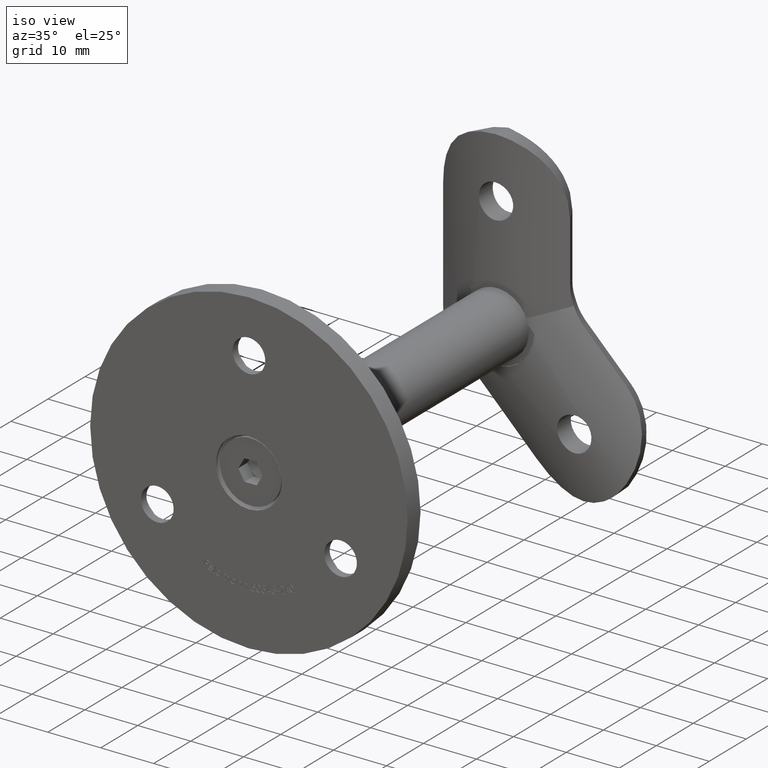
[diagram: clean part render]
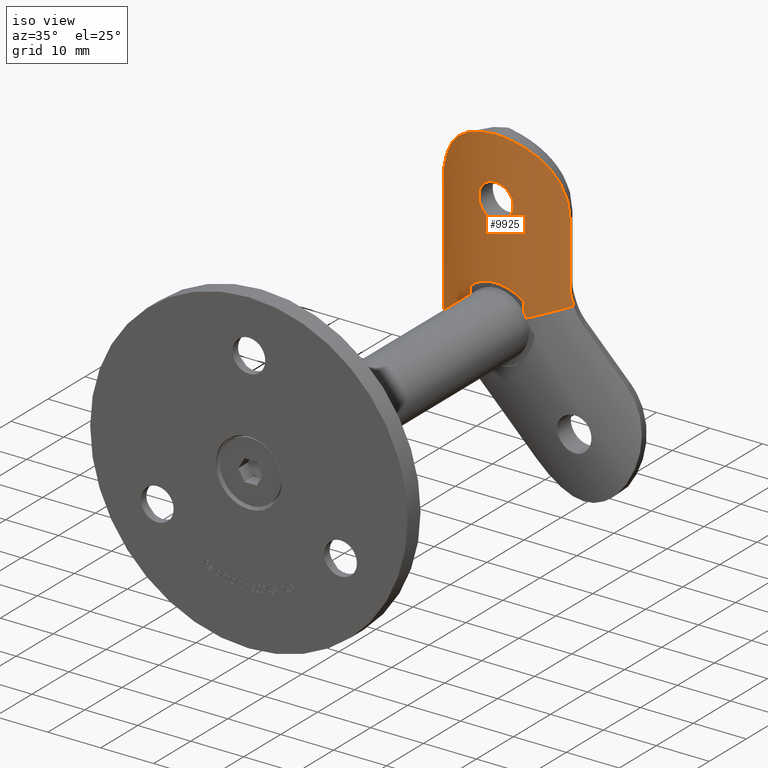
[diagram: same view with one face highlighted and labeled with its STEP entity id]
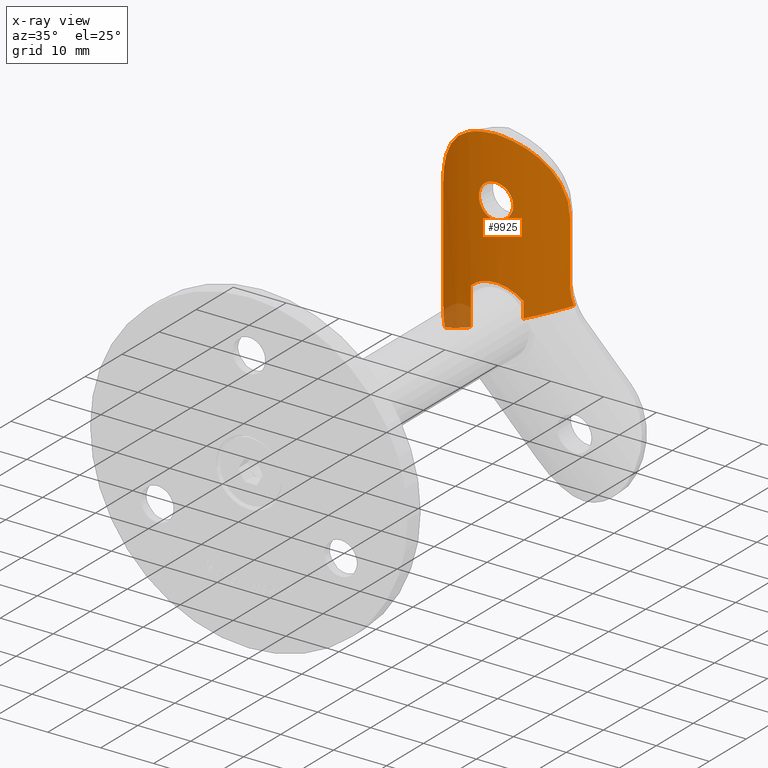
[diagram: x-ray of the same camera — body ghosted, the highlighted face saturated]
A machine part, iso view. The second image highlights one B-rep face of the part: STEP entity #9925.
The next image is the same camera in x-ray: the body ghosted, the highlighted face saturated — about 3% of this face is hidden behind the body in this view.
In plain terms, the highlighted cylindrical surface (partial cylindrical patch) has radius 24.9 mm, axis along (0, 0, 1).
Its self-contained STEP definition (entity closure, byte-faithful):
#91 = CARTESIAN_POINT ( 'NONE',  ( 1.827830933494218213, 0.06309544638728339927, -25.62401842934105645 ) ) ;
#364 = CARTESIAN_POINT ( 'NONE',  ( 12.50401797558645889, 3.367245079502465099, -27.32066617035510347 ) ) ;
#681 = CARTESIAN_POINT ( 'NONE',  ( -11.48949436263638724, 2.809243578117404105, -37.25910438981322415 ) ) ;
#724 = CARTESIAN_POINT ( 'NONE',  ( 12.21175480284177084, 3.199945751853462195, -26.20479511440437292 ) ) ;
#736 = CARTESIAN_POINT ( 'NONE',  ( -3.082716016114394275, 0.1914255402583636134, -10.44892698582973267 ) ) ;
#775 = ORIENTED_EDGE ( 'NONE', *, *, #7744, .F. ) ;
#820 = LINE ( 'NONE', #11184, #8758 ) ;
#862 = DIRECTION ( 'NONE',  ( 1.000000000000000000, 0.000000000000000000, 0.000000000000000000 ) ) ;
#911 = CARTESIAN_POINT ( 'NONE',  ( -0.4220450892774200713, 0.002691629868290161195, -8.270423108294716386 ) ) ;
#967 = CARTESIAN_POINT ( 'NONE',  ( 2.584891277162055356, 0.1342510905390189024, -9.518683599167735210 ) ) ;
#1010 = CARTESIAN_POINT ( 'NONE',  ( -11.63127593423871176, 2.883240075711221539, -9.264296820675539834 ) ) ;
#1401 =( BOUNDED_CURVE ( )  B_SPLINE_CURVE ( 3, ( #3102, #9578, #6937, #364 ),
 .UNSPECIFIED., .F., .F. ) 
 B_SPLINE_CURVE_WITH_KNOTS ( ( 4, 4 ),
 ( 4.913127052001620143, 5.238494576118018387 ),
 .UNSPECIFIED. ) 
 CURVE ( )  GEOMETRIC_REPRESENTATION_ITEM ( )  RATIONAL_B_SPLINE_CURVE ( ( 1.000000000000000000, 0.9911974376278638310, 0.9911974376278638310, 1.000000000000000000 ) ) 
 REPRESENTATION_ITEM ( '' )  );
#1424 = CARTESIAN_POINT ( 'NONE',  ( -3.704398101367949447, 0.2763284573897663021, -26.43863449741702709 ) ) ;
#1484 = CARTESIAN_POINT ( 'NONE',  ( -1.816407414500745832, 0.06535917475731205240, -25.63243878407243415 ) ) ;
#1538 = CARTESIAN_POINT ( 'NONE',  ( -1.590617300758585317, 0.04982189489905323315, -25.57662202755393466 ) ) ;
#1724 =( BOUNDED_CURVE ( )  B_SPLINE_CURVE ( 3, ( #10206, #11626, #10271, #3599 ),
 .UNSPECIFIED., .F., .F. ) 
 B_SPLINE_CURVE_WITH_KNOTS ( ( 4, 4 ),
 ( 4.232787700179390100, 4.511650908767759205 ),
 .UNSPECIFIED. ) 
 CURVE ( )  GEOMETRIC_REPRESENTATION_ITEM ( )  RATIONAL_B_SPLINE_CURVE ( ( 1.000000000000000000, 0.9935301013060989783, 0.9935301013060989783, 1.000000000000000000 ) ) 
 REPRESENTATION_ITEM ( '' )  );
#1820 = VERTEX_POINT ( 'NONE', #9528 ) ;
#1892 = CARTESIAN_POINT ( 'NONE',  ( 12.00000000000000000, 3.082346597307952685, -11.67467251880739632 ) ) ;
#2022 = B_SPLINE_CURVE_WITH_KNOTS ( 'NONE', 3,
 ( #6488, #5180, #11774, #13287, #6538, #15941, #9195, #7892, #17095, #9252, #10591, #15880, #13058, #4942, #17217, #14432, #13113, #6306, #15699, #7656, #3755, #1010, #2349, #3691, #6366, #7719 ),
 .UNSPECIFIED., .F., .F.,
 ( 4, 2, 2, 2, 2, 2, 2, 2, 2, 2, 2, 2, 4 ),
 ( 0.0005688773810512037961, 0.003010928116034047343, 0.004231953483525469767, 0.005452978851016893058, 0.007895029585999739641, 0.009116054953491162932, 0.01033708032098258796, 0.01155810568847401645, 0.01277913105596544495, 0.01522118179094829847, 0.01644220715843973044, 0.01766323252593116067, 0.02010528326091401766 ),
 .UNSPECIFIED. ) ;
#2125 = CARTESIAN_POINT ( 'NONE',  ( 0.8203206258465063350, 5.729330855228086705E-15, -0.03877798918743958351 ) ) ;
#2136 = CARTESIAN_POINT ( 'NONE',  ( 3.145969067140687248, 0.1995014300288233955, -10.65704632552842313 ) ) ;
#2171 = CARTESIAN_POINT ( 'NONE',  ( -12.00000000000000000, 3.082346597307952685, -34.42717768169227810 ) ) ;
#2176 = CARTESIAN_POINT ( 'NONE',  ( 11.99999999999999645, 3.082346597307953129, -24.48648722328091409 ) ) ;
#2188 = CARTESIAN_POINT ( 'NONE',  ( 2.582517882733477599, 0.1339974607114499672, -13.48462843409184408 ) ) ;
#2243 = CARTESIAN_POINT ( 'NONE',  ( -2.032879073410320814E-16, 4.352808201167243029E-19, -14.74999999999999645 ) ) ;
#2349 = CARTESIAN_POINT ( 'NONE',  ( -11.71892018293221938, 2.929946608142864672, -9.661418181616120648 ) ) ;
#2510 = VERTEX_POINT ( 'NONE', #681 ) ;
#2544 = CARTESIAN_POINT ( 'NONE',  ( -0.8475389795980344809, 0.01354129543384612402, -14.64484711525225968 ) ) ;
#2906 = VECTOR ( 'NONE', #9082, 1000.000000000000000 ) ;
#2959 = CARTESIAN_POINT ( 'NONE',  ( -2.256384447253275027, 0.1014627439347212806, -25.76416581438056497 ) ) ;
#3062 = CARTESIAN_POINT ( 'NONE',  ( 6.193579615948622497, 0.7798677464109063928, -1.697978878828575677 ) ) ;
#3102 = CARTESIAN_POINT ( 'NONE',  ( 4.964876634922554821, 0.5000000000000004441, -30.44348076230577504 ) ) ;
#3222 = ORIENTED_EDGE ( 'NONE', *, *, #11082, .F. ) ;
#3226 = VERTEX_POINT ( 'NONE', #5668 ) ;
#3236 = CARTESIAN_POINT ( 'NONE',  ( 9.198392393617037754, 1.759813120020573329, -4.259165633863893241 ) ) ;
#3411 = CARTESIAN_POINT ( 'NONE',  ( 2.832238759154640295, 0.1583304047991462016, -0.3739006947137712977 ) ) ;
#3424 = CARTESIAN_POINT ( 'NONE',  ( -3.228490066456462415, 0.2101517877956182168, -11.07077292914577704 ) ) ;
#3510 = DIRECTION ( 'NONE',  ( -0.000000000000000000, -0.000000000000000000, 1.000000000000000000 ) ) ;
#3531 = CARTESIAN_POINT ( 'NONE',  ( 2.920930841320863891, 0.1717806159786301745, -12.94064173437226373 ) ) ;
#3591 = CARTESIAN_POINT ( 'NONE',  ( -1.438107512745444794, 0.04079224225900569822, -8.577814977783782879 ) ) ;
#3599 = CARTESIAN_POINT ( 'NONE',  ( -4.964876634922568144, 0.5000000000000004441, -34.55651923769422496 ) ) ;
#3627 = CARTESIAN_POINT ( 'NONE',  ( -12.00000000000000000, 3.082346597307952685, -33.84117803419981385 ) ) ;
#3645 = CARTESIAN_POINT ( 'NONE',  ( 1.441942000660585643, 0.04100555873260482848, -14.42038812942246295 ) ) ;
#3691 = CARTESIAN_POINT ( 'NONE',  ( -11.92926174041580012, 3.043008909993824229, -10.86203283303862932 ) ) ;
#3755 = CARTESIAN_POINT ( 'NONE',  ( -11.41929183893146593, 2.772549371437245558, -8.476390597548276062 ) ) ;
#3771 = CARTESIAN_POINT ( 'NONE',  ( -2.586429615238502677, 0.1344104879972014277, -13.47939005895978859 ) ) ;
#4061 = B_SPLINE_CURVE_WITH_KNOTS ( 'NONE', 3,
 ( #5422, #6783, #14911, #16131, #6729, #8093, #13720, #13475, #91, #13663, #4067, #4119, #14855, #1538, #1484, #2959, #12349, #8155, #4293, #10784, #1424, #16183, #5367, #15019 ),
 .UNSPECIFIED., .F., .F.,
 ( 4, 2, 2, 2, 2, 2, 2, 2, 2, 2, 2, 4 ),
 ( 0.000000000000000000, 0.001374055046406987522, 0.002061082569610481283, 0.002748110092813975044, 0.004122165139220966903, 0.005496220185627959630, 0.006870275232034951489, 0.007557302755238449153, 0.008244330278441945950, 0.008931357801645445349, 0.009618385324848941278, 0.01099244037125593661 ),
 .UNSPECIFIED. ) ;
#4067 = CARTESIAN_POINT ( 'NONE',  ( 0.4623322430174249265, 6.315633565611699913E-05, -25.40022149196120438 ) ) ;
#4119 = CARTESIAN_POINT ( 'NONE',  ( -0.4555041638600173526, -6.268823660555099524E-05, -25.39978014968202658 ) ) ;
#4159 = CARTESIAN_POINT ( 'NONE',  ( 4.964876634922554821, 0.5000000000000004441, -27.42456898382018693 ) ) ;
#4293 = CARTESIAN_POINT ( 'NONE',  ( -3.100854879138974063, 0.1929892019412313697, -26.10883726280268746 ) ) ;
#4408 = CARTESIAN_POINT ( 'NONE',  ( 5.128062691157524000, 0.5308536768871348066, -1.148819043821191821 ) ) ;
#4512 = CARTESIAN_POINT ( 'NONE',  ( 12.00000000000000000, 3.082346597307952685, -12.49999999999999645 ) ) ;
#4580 = CARTESIAN_POINT ( 'NONE',  ( -4.964876634922568144, 0.5000000000000004441, -34.55651923769422496 ) ) ;
#4626 = CARTESIAN_POINT ( 'NONE',  ( 11.71973281888406504, 2.930381199801667780, -9.665526875418015251 ) ) ;
#4840 = CARTESIAN_POINT ( 'NONE',  ( 4.964876634922554821, 0.5000000000000004441, -30.44348076230577504 ) ) ;
#4848 = CARTESIAN_POINT ( 'NONE',  ( 3.229181485055398593, 0.2102417534989784731, -11.92503267213603380 ) ) ;
#4933 = CARTESIAN_POINT ( 'NONE',  ( 4.964876634922554821, 0.5000000000000004441, -57.31928916848294620 ) ) ;
#4942 = CARTESIAN_POINT ( 'NONE',  ( -8.936431653063731773, 1.657067174833706469, -3.951359026442096578 ) ) ;
#4960 = CARTESIAN_POINT ( 'NONE',  ( 0.8419475301357748354, 0.01337008707016773545, -14.64619291664299183 ) ) ;
#5014 = CARTESIAN_POINT ( 'NONE',  ( -3.229275808357102928, 0.2102551596989838401, -11.92331311017007778 ) ) ;
#5023 = AXIS2_PLACEMENT_3D ( 'NONE', #12902, #14347, #862 ) ;
#5180 = CARTESIAN_POINT ( 'NONE',  ( -0.8191954138921666573, 1.482731174168652349E-15, -0.03873852067721934161 ) ) ;
#5245 = CARTESIAN_POINT ( 'NONE',  ( -2.150297687164746119, 0.09256582363791968082, -13.94612874792547785 ) ) ;
#5367 = CARTESIAN_POINT ( 'NONE',  ( -4.636296391438945008, 0.4331409682963525132, -27.10314596213624938 ) ) ;
#5422 = CARTESIAN_POINT ( 'NONE',  ( 4.964876634922554821, 0.5000000000000004441, -27.42456898382018693 ) ) ;
#5454 = ORIENTED_EDGE ( 'NONE', *, *, #14934, .F. ) ;
#5579 = LINE ( 'NONE', #10489, #2906 ) ;
#5668 = CARTESIAN_POINT ( 'NONE',  ( 1.463318081287534743E-14, 0.000000000000000000, -0.01000400320320254943 ) ) ;
#5723 = CARTESIAN_POINT ( 'NONE',  ( 4.008134617361835517, 0.3215756636084152187, -0.7086648193223168413 ) ) ;
#5888 = CARTESIAN_POINT ( 'NONE',  ( 8.941611915199445093, 1.659061782107881244, -3.957235292452659259 ) ) ;
#5929 = VERTEX_POINT ( 'NONE', #7739 ) ;
#6073 = CARTESIAN_POINT ( 'NONE',  ( -2.145978315695688643, 0.09218970704659187887, -9.050070338001447112 ) ) ;
#6131 = CARTESIAN_POINT ( 'NONE',  ( 1.048473687167943424, 0.02130420838847979156, -14.58359635605199145 ) ) ;
#6140 = B_SPLINE_CURVE_WITH_KNOTS ( 'NONE', 3,
 ( #7301, #15133, #724, #16925, #2176, #16814 ),
 .UNSPECIFIED., .F., .F.,
 ( 4, 2, 4 ),
 ( 7.165583942981723818E-18, 0.001734632446073682390, 0.003469264892147357841 ),
 .UNSPECIFIED. ) ;
#6157 = ORIENTED_EDGE ( 'NONE', *, *, #7716, .T. ) ;
#6187 = CARTESIAN_POINT ( 'NONE',  ( 2.819985011859635016, 0.1599178155345801489, -9.870594547743737124 ) ) ;
#6216 = LINE ( 'NONE', #14427, #13397 ) ;
#6259 = CARTESIAN_POINT ( 'NONE',  ( -0.8418437960636614426, 0.01334925792860302760, -8.353638930470772550 ) ) ;
#6306 = CARTESIAN_POINT ( 'NONE',  ( -10.52934465081288273, 2.331179716261313928, -6.238012928519367506 ) ) ;
#6366 = CARTESIAN_POINT ( 'NONE',  ( -12.00000000000000355, 3.082346597307953573, -11.67468659155521493 ) ) ;
#6488 = CARTESIAN_POINT ( 'NONE',  ( 1.463318081287534743E-14, 0.000000000000000000, -0.01000400320320254943 ) ) ;
#6538 = CARTESIAN_POINT ( 'NONE',  ( -3.217699393327955626, 0.2056162798510466627, -0.4702472948569176858 ) ) ;
#6729 = CARTESIAN_POINT ( 'NONE',  ( 3.516909975170993352, 0.2487702346759058103, -26.32798052094529240 ) ) ;
#6783 = CARTESIAN_POINT ( 'NONE',  ( 4.636331865773988703, 0.4331481865626341521, -27.10318066375992885 ) ) ;
#6798 = EDGE_CURVE ( 'NONE', #11303, #3226, #17052, .T. ) ;
#6888 = VERTEX_POINT ( 'NONE', #4840 ) ;
#6937 = CARTESIAN_POINT ( 'NONE',  ( 10.15830425404688242, 2.005094874012975481, -28.29229260726145867 ) ) ;
#6998 = VERTEX_POINT ( 'NONE', #9139 ) ;
#7235 = CARTESIAN_POINT ( 'NONE',  ( 7.529244373874362850, 1.155681032808739461, -2.584525130355103784 ) ) ;
#7301 = CARTESIAN_POINT ( 'NONE',  ( 12.50401797558645889, 3.367245079502465099, -27.32066617035510347 ) ) ;
#7303 = CARTESIAN_POINT ( 'NONE',  ( 8.128328691940803097, 1.356958475264210318, -3.097210266036950266 ) ) ;
#7374 = CARTESIAN_POINT ( 'NONE',  ( 3.084559666411811119, 0.1916567741128208657, -10.45434818341422911 ) ) ;
#7428 = CARTESIAN_POINT ( 'NONE',  ( 3.249881096625239607, 0.2129938455053126956, -11.71401408977899017 ) ) ;
#7530 = EDGE_CURVE ( 'NONE', #11730, #14607, #820, .T. ) ;
#7552 = CARTESIAN_POINT ( 'NONE',  ( 1.983570215998156083, 0.07850660757291826053, -8.916838646390162992 ) ) ;
#7582 = CARTESIAN_POINT ( 'NONE',  ( -4.964876634922568144, 0.5000000000000004441, -27.42456898382019759 ) ) ;
#7611 = CARTESIAN_POINT ( 'NONE',  ( -1.046863144665984402, 0.02124518555872411882, -8.415944864529864233 ) ) ;
#7656 = CARTESIAN_POINT ( 'NONE',  ( -11.29553683307911527, 2.708889678496892550, -8.088398392996984043 ) ) ;
#7670 = CARTESIAN_POINT ( 'NONE',  ( -3.146952359417467093, 0.1996272624648860461, -12.33911088852374682 ) ) ;
#7716 = EDGE_CURVE ( 'NONE', #11008, #2510, #9100, .T. ) ;
#7719 = CARTESIAN_POINT ( 'NONE',  ( -12.00000000000000000, 3.082346597307952685, -12.49999999999999645 ) ) ;
#7739 = CARTESIAN_POINT ( 'NONE',  ( 0.000000000000000000, 0.000000000000000000, -14.75000000000000000 ) ) ;
#7744 = EDGE_CURVE ( 'NONE', #11008, #6998, #6216, .T. ) ;
#7797 = CARTESIAN_POINT ( 'NONE',  ( -2.822025962354457906, 0.1601493234214686201, -13.12596821244729917 ) ) ;
#7892 = CARTESIAN_POINT ( 'NONE',  ( -5.492278831658849114, 0.6015425689991616975, -1.298473879925210461 ) ) ;
#7904 = ORIENTED_EDGE ( 'NONE', *, *, #9280, .T. ) ;
#7906 = CARTESIAN_POINT ( 'NONE',  ( -2.449483258908692118, 0.1203187606803650805, -13.64647566004824597 ) ) ;
#8093 = CARTESIAN_POINT ( 'NONE',  ( 3.111721533360767289, 0.1943534022062730904, -26.11410387477945960 ) ) ;
#8155 = CARTESIAN_POINT ( 'NONE',  ( -2.894113515964134908, 0.1678508578788060202, -26.01261974947192712 ) ) ;
#8205 = CYLINDRICAL_SURFACE ( 'NONE', #5023, 24.90000000000000213 ) ;
#8487 = CARTESIAN_POINT ( 'NONE',  ( 11.92926132374377168, 3.043013140918604975, -10.86309618604238025 ) ) ;
#8734 = CARTESIAN_POINT ( 'NONE',  ( -1.982416444426232660, 0.07840227988801687364, -8.915797270423945875 ) ) ;
#8758 = VECTOR ( 'NONE', #13704, 1000.000000000000000 ) ;
#8802 = CARTESIAN_POINT ( 'NONE',  ( -3.249806662670244872, 0.2129840464105036968, -11.28220068217840577 ) ) ;
#8854 = CARTESIAN_POINT ( 'NONE',  ( 1.981630556740395344, 0.07834662310625674364, -14.08470825950995220 ) ) ;
#8908 = CARTESIAN_POINT ( 'NONE',  ( 3.145605328504093912, 0.1994546122686505496, -12.34464960373775533 ) ) ;
#8970 = CARTESIAN_POINT ( 'NONE',  ( 0.8458605681947161115, 0.01349775807946383861, -8.354812655149226330 ) ) ;
#9082 = DIRECTION ( 'NONE',  ( -0.000000000000000000, -0.000000000000000000, 1.000000000000000000 ) ) ;
#9100 = B_SPLINE_CURVE_WITH_KNOTS ( 'NONE', 3,
 ( #3627, #2171, #11711, #11767, #13106, #12927 ),
 .UNSPECIFIED., .F., .F.,
 ( 4, 2, 4 ),
 ( 0.000000000000000000, 0.001733307664356488129, 0.003466615328712976257 ),
 .UNSPECIFIED. ) ;
#9112 = VERTEX_POINT ( 'NONE', #15469 ) ;
#9139 = CARTESIAN_POINT ( 'NONE',  ( -12.00000000000000000, 3.082346597307952685, -12.49999999999999645 ) ) ;
#9195 = CARTESIAN_POINT ( 'NONE',  ( -4.380453402601024671, 0.3854294742829925680, -0.8408256694917124463 ) ) ;
#9197 = EDGE_CURVE ( 'NONE', #1820, #9112, #6140, .T. ) ;
#9252 = CARTESIAN_POINT ( 'NONE',  ( -7.183437503909660293, 1.056214804828535581, -2.347391180518095588 ) ) ;
#9258 = CARTESIAN_POINT ( 'NONE',  ( -1.631808679204859391, 0.05288956180059271178, -14.31875712187929217 ) ) ;
#9280 = EDGE_CURVE ( 'NONE', #3226, #6998, #2022, .T. ) ;
#9528 = CARTESIAN_POINT ( 'NONE',  ( 12.50401797558645889, 3.367245079502465099, -27.32066617035510347 ) ) ;
#9578 = CARTESIAN_POINT ( 'NONE',  ( 7.622939433523471031, 1.040858765693869481, -29.34247510148589200 ) ) ;
#9721 = CARTESIAN_POINT ( 'NONE',  ( 6.538481270488128771, 0.8713439058738661203, -1.907369470076841322 ) ) ;
#9839 = CARTESIAN_POINT ( 'NONE',  ( 10.87724787120345127, 2.499246235867802479, -6.960141998743778480 ) ) ;
#9925 = ADVANCED_FACE ( 'NONE', ( #14931, #10084 ), #8205, .T. ) ;
#10081 = CARTESIAN_POINT ( 'NONE',  ( -3.145444623869123379, 0.1994346022389037187, -10.65527394633823732 ) ) ;
#10084 = FACE_OUTER_BOUND ( 'NONE', #11928, .T. ) ;
#10197 = CARTESIAN_POINT ( 'NONE',  ( 2.148639448921924711, 0.09242140096127453297, -13.94758824671587050 ) ) ;
#10206 = CARTESIAN_POINT ( 'NONE',  ( -11.48949436263638724, 2.809243578117404105, -37.25910438981322415 ) ) ;
#10264 = CARTESIAN_POINT ( 'NONE',  ( 2.921644206847070269, 0.1718636279946009204, -10.06059346056070325 ) ) ;
#10271 = CARTESIAN_POINT ( 'NONE',  ( -7.240344203411923196, 0.9630088427998672040, -35.49904876530264630 ) ) ;
#10321 = CARTESIAN_POINT ( 'NONE',  ( -0.2109791096492378837, -1.041552178468837594E-05, -8.249920201073631887 ) ) ;
#10447 = EDGE_CURVE ( 'NONE', #2510, #14607, #1724, .T. ) ;
#10489 = CARTESIAN_POINT ( 'NONE',  ( 12.00000000000000000, 3.082346597307952685, -57.31928916848294620 ) ) ;
#10493 = CARTESIAN_POINT ( 'NONE',  ( -0.4274426201808396164, 0.002782444970532406848, -14.72888192826889586 ) ) ;
#10546 = CARTESIAN_POINT ( 'NONE',  ( -3.084510918084595321, 0.1916508515182970551, -12.54576963726186811 ) ) ;
#10591 = CARTESIAN_POINT ( 'NONE',  ( -7.503349832690521914, 1.155296670455898900, -2.591542297622155377 ) ) ;
#10784 = CARTESIAN_POINT ( 'NONE',  ( -3.505576954194477679, 0.2471580994179669588, -26.32155421379778559 ) ) ;
#10877 = LINE ( 'NONE', #4933, #17167 ) ;
#11008 = VERTEX_POINT ( 'NONE', #13192 ) ;
#11082 = EDGE_CURVE ( 'NONE', #16633, #11730, #4061, .T. ) ;
#11138 = CARTESIAN_POINT ( 'NONE',  ( 9.683364675509217534, 1.958528381369603277, -4.894553589139369443 ) ) ;
#11184 = CARTESIAN_POINT ( 'NONE',  ( -4.964876634922568144, 0.5000000000000004441, -57.31928916848294620 ) ) ;
#11250 = CARTESIAN_POINT ( 'NONE',  ( 11.63249475925459997, 2.883887791731571948, -9.269660941215043692 ) ) ;
#11268 = ORIENTED_EDGE ( 'NONE', *, *, #16380, .T. ) ;
#11303 = VERTEX_POINT ( 'NONE', #14552 ) ;
#11432 = CARTESIAN_POINT ( 'NONE',  ( 1.441810412423835341, 0.04099828076982427183, -8.579550613620892108 ) ) ;
#11482 = CARTESIAN_POINT ( 'NONE',  ( 1.463318081287534743E-14, 0.000000000000000000, -0.01000400320320254943 ) ) ;
#11494 = CARTESIAN_POINT ( 'NONE',  ( 0.4289891337368058610, 0.002822604538515452975, -8.271431918300013564 ) ) ;
#11626 = CARTESIAN_POINT ( 'NONE',  ( -9.429379616677721287, 1.737769323997730764, -36.40577692199233439 ) ) ;
#11669 = CARTESIAN_POINT ( 'NONE',  ( -2.583149008785858847, 0.1340672013076180391, -9.516352910792100772 ) ) ;
#11711 = CARTESIAN_POINT ( 'NONE',  ( -11.95699661753781129, 3.058536621664715849, -35.00485180006355534 ) ) ;
#11714 = ORIENTED_EDGE ( 'NONE', *, *, #10447, .T. ) ;
#11729 = CARTESIAN_POINT ( 'NONE',  ( -2.032879073410320814E-16, 4.352808201167243029E-19, -14.74999999999999645 ) ) ;
#11730 = VERTEX_POINT ( 'NONE', #7582 ) ;
#11767 = CARTESIAN_POINT ( 'NONE',  ( -11.78754428044097224, 2.966621544877877437, -36.14419718542028903 ) ) ;
#11774 = CARTESIAN_POINT ( 'NONE',  ( -1.627440240215804801, 0.04036384305547544710, -0.1293946109472723927 ) ) ;
#11786 = CARTESIAN_POINT ( 'NONE',  ( -0.2149559938452964281, -6.162164691275041130E-17, -14.74999999999999467 ) ) ;
#11897 = CARTESIAN_POINT ( 'NONE',  ( -1.443251308329497551, 0.04109199780575432254, -14.41964269507117358 ) ) ;
#11928 = EDGE_LOOP ( 'NONE', ( #775, #6157, #11714, #14887, #3222, #5454, #14984, #16516, #11268, #13166, #7904 ) ) ;
#12349 = CARTESIAN_POINT ( 'NONE',  ( -2.471878148250434393, 0.1220882104319695460, -25.84028424191918560 ) ) ;
#12468 = CARTESIAN_POINT ( 'NONE',  ( 5.489343158652249421, 0.6099131315616551641, -1.319397194473076462 ) ) ;
#12836 = CARTESIAN_POINT ( 'NONE',  ( 2.450472175204745806, 0.1204048197329787018, -9.354393194520016053 ) ) ;
#12894 = CARTESIAN_POINT ( 'NONE',  ( 0.4262744161754346561, 0.002780994883184736890, -14.72888458052476146 ) ) ;
#12902 = CARTESIAN_POINT ( 'NONE',  ( -7.328686268959218194E-15, 24.90000000000000568, -57.31928916848294620 ) ) ;
#12927 = CARTESIAN_POINT ( 'NONE',  ( -11.48949436263638724, 2.809243578117404105, -37.25910438981322415 ) ) ;
#12948 = CARTESIAN_POINT ( 'NONE',  ( 0.2149559938452952623, 6.249220855298364304E-17, -14.74999999999999645 ) ) ;
#13013 = CARTESIAN_POINT ( 'NONE',  ( -2.445856208000030119, 0.1199583964758267479, -9.349380161450149274 ) ) ;
#13058 = CARTESIAN_POINT ( 'NONE',  ( -8.393859089535695261, 1.455664509521898076, -3.378407731914971013 ) ) ;
#13071 = CARTESIAN_POINT ( 'NONE',  ( -2.919115925763340780, 0.1715638973961852998, -10.05547422000159585 ) ) ;
#13106 = CARTESIAN_POINT ( 'NONE',  ( -11.66112812926635200, 2.898511014527122676, -36.70587291815974140 ) ) ;
#13113 = CARTESIAN_POINT ( 'NONE',  ( -9.903066155532057380, 2.052867408294323681, -5.215769243556994894 ) ) ;
#13150 = B_SPLINE_CURVE_WITH_KNOTS ( 'NONE', 3,
 ( #2243, #12948, #12894, #4960, #6131, #3645, #15535, #8854, #10197, #14383, #2188, #15417, #3531, #16993, #8908, #4848, #7428, #14276, #16773, #2136, #7374, #10264, #6187, #967, #12836, #15583, #7552, #16944, #11432, #14161, #8970, #11494, #15645, #10321, #911, #6259, #7611, #3591, #16829, #8734, #6073, #13013, #11669, #15480, #13071, #736, #10081, #3424, #8802, #15833, #5014, #7670, #10546, #17229, #7797, #3771, #7906, #5245, #14447, #9258, #11897, #14613, #2544, #10493, #11786, #11729 ),
 .UNSPECIFIED., .T., .F.,
 ( 4, 2, 2, 2, 2, 2, 2, 2, 2, 2, 2, 2, 2, 2, 2, 2, 2, 2, 2, 2, 2, 2, 2, 2, 2, 2, 2, 2, 2, 2, 2, 2, 4 ),
 ( 0.000000000000000000, 0.0006356628891656113112, 0.001271325778331222622, 0.001906988667496833934, 0.002542651556662445245, 0.003178314445828056556, 0.003813977334993667867, 0.004449640224159279178, 0.005085303113324890489, 0.005720966002490501801, 0.006356628891656113112, 0.006992291780821723556, 0.007627954669987335734, 0.008263617559152947045, 0.008899280448318558356, 0.009534943337484169668, 0.01017060622664978098, 0.01080626911581539229, 0.01144193200498100360, 0.01207759489414661838, 0.01271325778331222969, 0.01334892067247784447, 0.01398458356164345752, 0.01462024645080907057, 0.01525590933997468361, 0.01589157222914029666, 0.01652723511830591144, 0.01716289800747152622, 0.01779856089663714100, 0.01843422378580275231, 0.01906988667496836709, 0.01970554956413397840, 0.02034121245329959318 ),
 .UNSPECIFIED. ) ;
#13166 = ORIENTED_EDGE ( 'NONE', *, *, #6798, .T. ) ;
#13167 = EDGE_CURVE ( 'NONE', #6888, #1820, #1401, .T. ) ;
#13192 = CARTESIAN_POINT ( 'NONE',  ( -12.00000000000000000, 3.082346597307952685, -33.84117803419981385 ) ) ;
#13287 = CARTESIAN_POINT ( 'NONE',  ( -2.821808837442766560, 0.1571745190102803169, -0.3715277274888963421 ) ) ;
#13397 = VECTOR ( 'NONE', #3510, 1000.000000000000000 ) ;
#13475 = CARTESIAN_POINT ( 'NONE',  ( 2.264874394996049034, 0.09954205950475658593, -25.75531463000270804 ) ) ;
#13663 = CARTESIAN_POINT ( 'NONE',  ( 0.9285590918302040198, 0.01324505405162466204, -25.44607439120178682 ) ) ;
#13704 = DIRECTION ( 'NONE',  ( 0.000000000000000000, 0.000000000000000000, -1.000000000000000000 ) ) ;
#13720 = CARTESIAN_POINT ( 'NONE',  ( 2.901699150288117313, 0.1687296209421809134, -26.01596181129704632 ) ) ;
#13774 = EDGE_LOOP ( 'NONE', ( #17318 ) ) ;
#13823 = CARTESIAN_POINT ( 'NONE',  ( 4.387458988742168664, 0.3866868191214805073, -0.8434506590508884516 ) ) ;
#13938 = CARTESIAN_POINT ( 'NONE',  ( 11.29766269433836889, 2.709970927054295320, -8.094650783288875218 ) ) ;
#13990 = CARTESIAN_POINT ( 'NONE',  ( 10.53156943452271577, 2.332274622424630905, -6.242843112630288793 ) ) ;
#14161 = CARTESIAN_POINT ( 'NONE',  ( 1.048431389722667362, 0.02130278002670764337, -8.416392777148798743 ) ) ;
#14276 = CARTESIAN_POINT ( 'NONE',  ( 3.250117891621814969, 0.2130250191559435180, -11.28961258738753060 ) ) ;
#14347 = DIRECTION ( 'NONE',  ( -0.000000000000000000, -0.000000000000000000, 1.000000000000000000 ) ) ;
#14383 = CARTESIAN_POINT ( 'NONE',  ( 2.448071013184131672, 0.1201784561842475646, -13.64808938858065268 ) ) ;
#14427 = CARTESIAN_POINT ( 'NONE',  ( -12.00000000000000000, 3.082346597307952685, -57.31928916848294620 ) ) ;
#14432 = CARTESIAN_POINT ( 'NONE',  ( -9.675473794426805441, 1.955212908482890866, -4.883580587056352229 ) ) ;
#14447 = CARTESIAN_POINT ( 'NONE',  ( -1.986938660185548766, 0.07876370012431647971, -14.08074912347823293 ) ) ;
#14552 = CARTESIAN_POINT ( 'NONE',  ( 12.00000000000000000, 3.082346597307952685, -12.49999999999999645 ) ) ;
#14607 = VERTEX_POINT ( 'NONE', #4580 ) ;
#14613 = CARTESIAN_POINT ( 'NONE',  ( -1.052430327299029411, 0.02148172003137240396, -14.58215480014527898 ) ) ;
#14855 = CARTESIAN_POINT ( 'NONE',  ( -0.9113910570558921842, 0.01255281568712598474, -25.44363619642422591 ) ) ;
#14887 = ORIENTED_EDGE ( 'NONE', *, *, #7530, .F. ) ;
#14911 = CARTESIAN_POINT ( 'NONE',  ( 4.282078825921518117, 0.3679519235480096517, -26.81844360153097284 ) ) ;
#14931 = FACE_BOUND ( 'NONE', #13774, .T. ) ;
#14934 = EDGE_CURVE ( 'NONE', #6888, #16633, #10877, .T. ) ;
#14984 = ORIENTED_EDGE ( 'NONE', *, *, #13167, .T. ) ;
#15019 = CARTESIAN_POINT ( 'NONE',  ( -4.964876634922568144, 0.5000000000000004441, -27.42456898382019759 ) ) ;
#15133 = CARTESIAN_POINT ( 'NONE',  ( 12.33709957484929376, 3.270315973543671095, -26.76689954963821805 ) ) ;
#15136 = CARTESIAN_POINT ( 'NONE',  ( 3.231398724006067091, 0.2074475143392194576, -0.4739950218990334196 ) ) ;
#15306 = CARTESIAN_POINT ( 'NONE',  ( 9.909208303599793766, 2.055544728231604612, -5.225205794699717465 ) ) ;
#15417 = CARTESIAN_POINT ( 'NONE',  ( 2.820108457229645094, 0.1599258554032029211, -13.12945908985340715 ) ) ;
#15466 = CARTESIAN_POINT ( 'NONE',  ( 1.631311279847711626, 0.04047493422251745299, -0.1296702460309392124 ) ) ;
#15469 = CARTESIAN_POINT ( 'NONE',  ( 12.00000000000000000, 3.082346597307952685, -23.90005253724551793 ) ) ;
#15480 = CARTESIAN_POINT ( 'NONE',  ( -2.819118736763447597, 0.1598169825086436235, -9.869023567262965813 ) ) ;
#15535 = CARTESIAN_POINT ( 'NONE',  ( 1.628522370790658647, 0.05268121277665514801, -14.32054805632179217 ) ) ;
#15583 = CARTESIAN_POINT ( 'NONE',  ( 2.147461758798165921, 0.09230846745580874313, -9.051153242917354902 ) ) ;
#15621 = DIRECTION ( 'NONE',  ( -0.000000000000000000, -0.000000000000000000, 1.000000000000000000 ) ) ;
#15645 = CARTESIAN_POINT ( 'NONE',  ( 0.2134304929416272756, 1.047585592992875770E-05, -8.250080261178695196 ) ) ;
#15699 = CARTESIAN_POINT ( 'NONE',  ( -10.87547070842451546, 2.498387212870706531, -6.956388742250738666 ) ) ;
#15712 = EDGE_CURVE ( 'NONE', #5929, #5929, #13150, .T. ) ;
#15833 = CARTESIAN_POINT ( 'NONE',  ( -3.250190741882603707, 0.2130346097601774624, -11.71199063413292585 ) ) ;
#15880 = CARTESIAN_POINT ( 'NONE',  ( -8.107505758264471396, 1.354734121282299197, -3.106394040554516067 ) ) ;
#15941 = CARTESIAN_POINT ( 'NONE',  ( -3.999738592611216337, 0.3201654217413983372, -0.7057479309260151767 ) ) ;
#16131 = CARTESIAN_POINT ( 'NONE',  ( 3.712954843146279327, 0.2776349266171101449, -26.44396690251332771 ) ) ;
#16183 = CARTESIAN_POINT ( 'NONE',  ( -4.280216917462833059, 0.3675560682073238383, -26.81663732137828404 ) ) ;
#16380 = EDGE_CURVE ( 'NONE', #9112, #11303, #5579, .T. ) ;
#16463 = CARTESIAN_POINT ( 'NONE',  ( 11.42175652761495286, 2.773825253446156491, -8.484731862856898843 ) ) ;
#16516 = ORIENTED_EDGE ( 'NONE', *, *, #9197, .T. ) ;
#16633 = VERTEX_POINT ( 'NONE', #4159 ) ;
#16773 = CARTESIAN_POINT ( 'NONE',  ( 3.228969879261255560, 0.2102145717023749527, -11.07403546211599732 ) ) ;
#16814 = CARTESIAN_POINT ( 'NONE',  ( 12.00000000000000000, 3.082346597307952685, -23.90005253724551793 ) ) ;
#16829 = CARTESIAN_POINT ( 'NONE',  ( -1.627328590383237961, 0.05259591029434627918, -8.678674005790687929 ) ) ;
#16925 = CARTESIAN_POINT ( 'NONE',  ( 12.04321608984875525, 3.105958246565655667, -25.06458755407723871 ) ) ;
#16944 = CARTESIAN_POINT ( 'NONE',  ( 1.631881757883423267, 0.05290666978562733741, -8.681448012034246986 ) ) ;
#16993 = CARTESIAN_POINT ( 'NONE',  ( 3.083090273744732990, 0.1914746444064321651, -12.54968564367393391 ) ) ;
#17052 = B_SPLINE_CURVE_WITH_KNOTS ( 'NONE', 3,
 ( #4512, #1892, #8487, #4626, #11250, #16463, #13938, #9839, #13990, #15306, #11138, #3236, #5888, #7303, #7235, #9721, #3062, #12468, #4408, #13823, #5723, #15136, #3411, #15466, #2125, #11482 ),
 .UNSPECIFIED., .F., .F.,
 ( 4, 2, 2, 2, 2, 2, 2, 2, 2, 2, 2, 2, 4 ),
 ( 3.496446946337351263E-18, 0.002440991827599625543, 0.003661487741399436797, 0.004881983655199248484, 0.007322975482798877930, 0.008543471396598691786, 0.009763967310398503907, 0.01220495913799813162, 0.01342545505179794721, 0.01464595096559776106, 0.01586644687939757492, 0.01708694279319739051, 0.01952793462079701822 ),
 .UNSPECIFIED. ) ;
#17095 = CARTESIAN_POINT ( 'NONE',  ( -6.193265640526153248, 0.7727347606469537888, -1.673053028873246140 ) ) ;
#17167 = VECTOR ( 'NONE', #15621, 1000.000000000000000 ) ;
#17217 = CARTESIAN_POINT ( 'NONE',  ( -9.192650196263452145, 1.757544853865925516, -4.252295405747423374 ) ) ;
#17229 = CARTESIAN_POINT ( 'NONE',  ( -2.921692957214069963, 0.1718695508369399993, -12.93928871383319645 ) ) ;
#17318 = ORIENTED_EDGE ( 'NONE', *, *, #15712, .F. ) ;